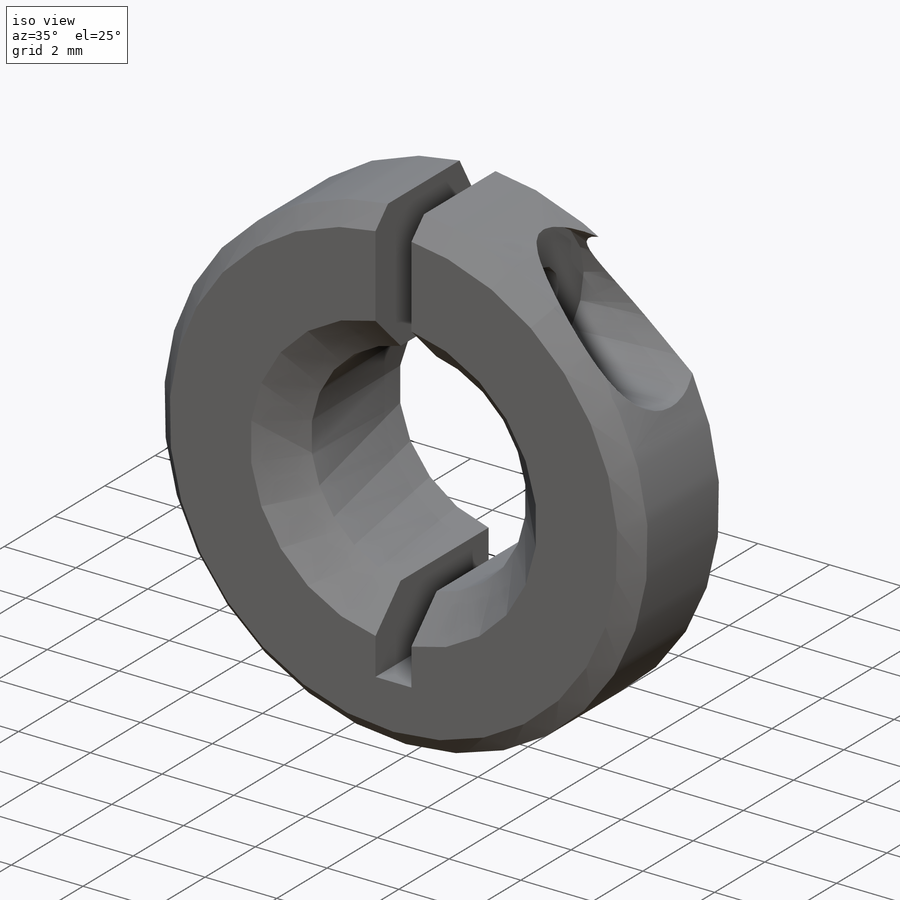
[diagram: iso view]
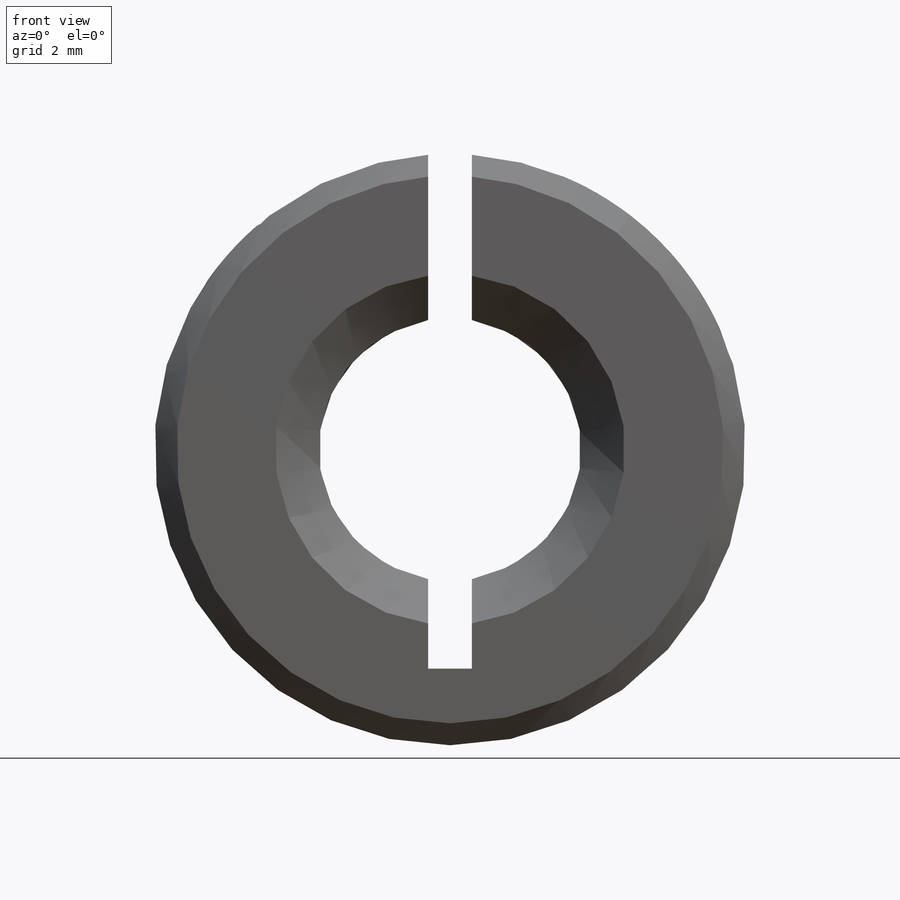
[diagram: front view]
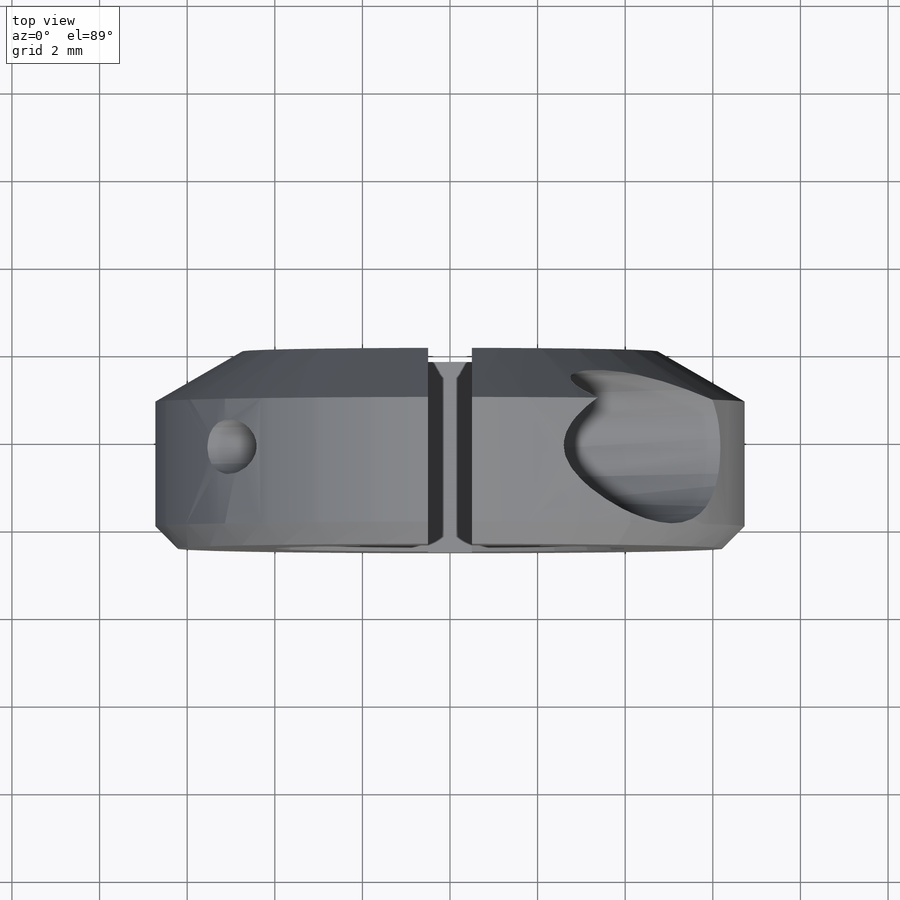
[diagram: top view]
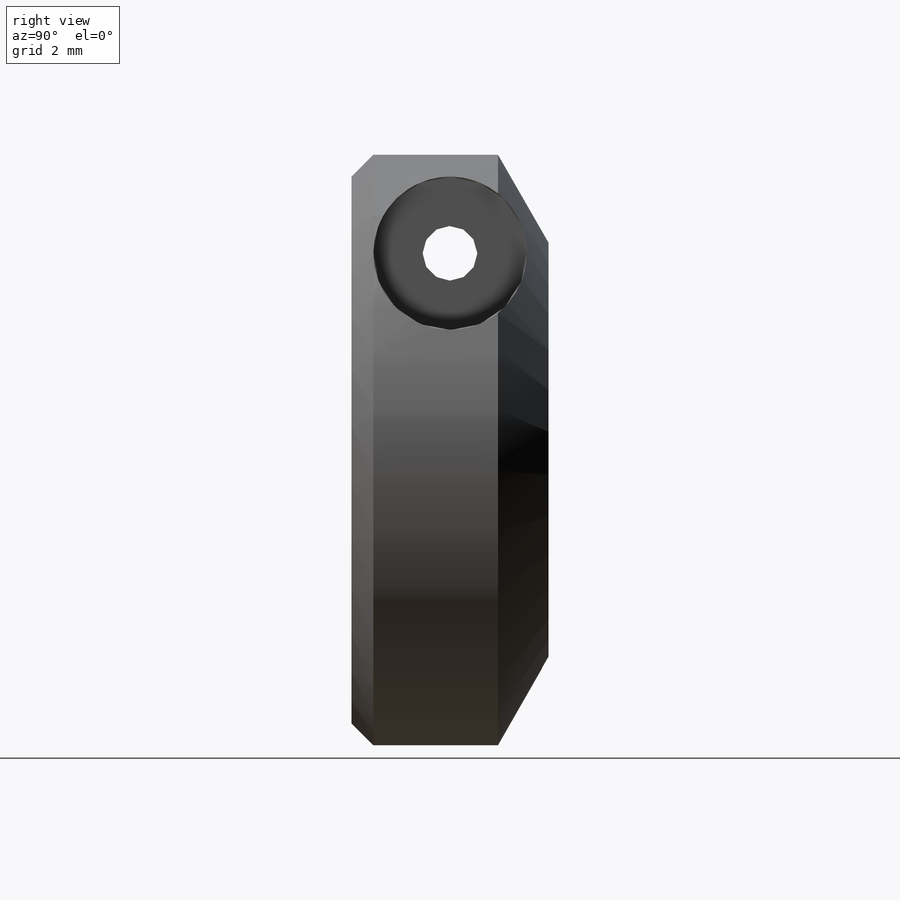
[diagram: right view]
SOLIDWORKS PART (.sldprt)
format: sldprt  version: not decoded by parser v0  size: 255,488 bytes
history: native  units: mm
features: sketch x7, plane x3, chamfer x3, cut_extrude x3, extrude x2, material x1, hole x1, thread x1 (+9 scaffold rows collapsed)
feature tree (30):
  scaffold x9  (default folders/planes/origin — collapsed)
  material  "Material <not specified>"
  plane  "Face"
  plane  "Dessus"
  plane  "Droite"
  sketch  "Esquisse1"  dims[D1=13.5mm D2=6.0mm]
  extrude  "Extrusion1"  Depth=4.5mm
  chamfer  "Chanfrein1"  Distance=2mm Angle=30deg
  sketch  "Esquisse3"  dims[D1=0.5mm D2=5.0mm]
  cut_extrude  "Enlèv. mat.-Extru.1"  [1 undecoded]
  chamfer  "Chanfrein3"  Distance=0.5mm Angle=45deg
  hole  "Trou taraudé M1.61"  Diameter=1.25mm Depth=6.25mm
  sketch  "Esquisse6"  dims[D1=2.25mm D2=2.25mm]
  sketch  "Esquisse7"  dims[hole-wizard template sketch: 61 standard entries collapsed; hole parameters above]
  thread  "Filetage de perçage1"  Diameter=1.6mm  [1 undecoded]
  sketch  "Esquisse8"  dims[D1=3.5mm]
  cut_extrude  "Enlèv. mat.-Extru.3"  [1 undecoded]
  sketch  "Esquisse9"  dims[D1=1.5mm]
  extrude  "Extrusion2"  Depth=2mm
  chamfer  "Chanfrein4"  Distance=1mm Angle=45deg
  sketch  "Esquisse10"
  cut_extrude  "Enlèv. mat.-Extru.4"  [1 undecoded]
decode coverage: 13 of 17 modeling features carry decoded parameters
note: ~ marks probable driven/reference dimensions
note: 4 parameter values undecoded
summary: no parameter record found for 3 features
note: suppression state not decoded; provenance and decode notes live in map.json
